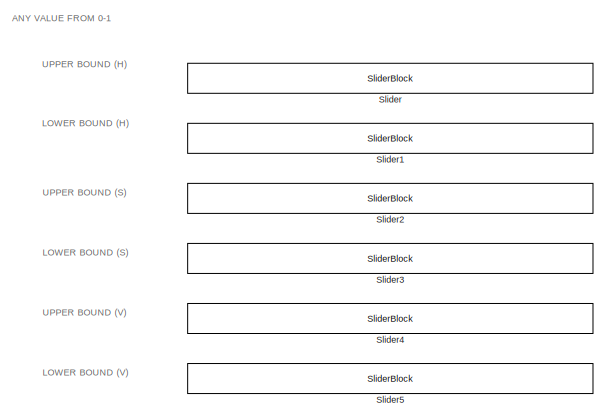
[diagram: root canvas - part 1/2, left side, full height]
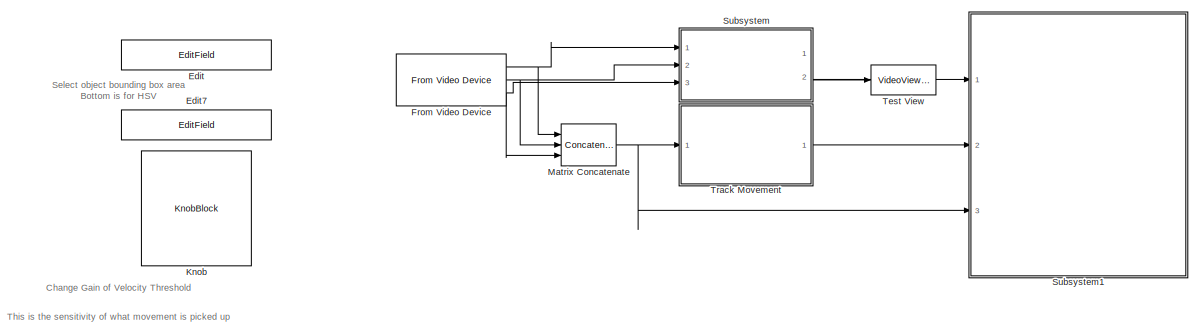
[diagram: root canvas - part 2/2, right side, full height]
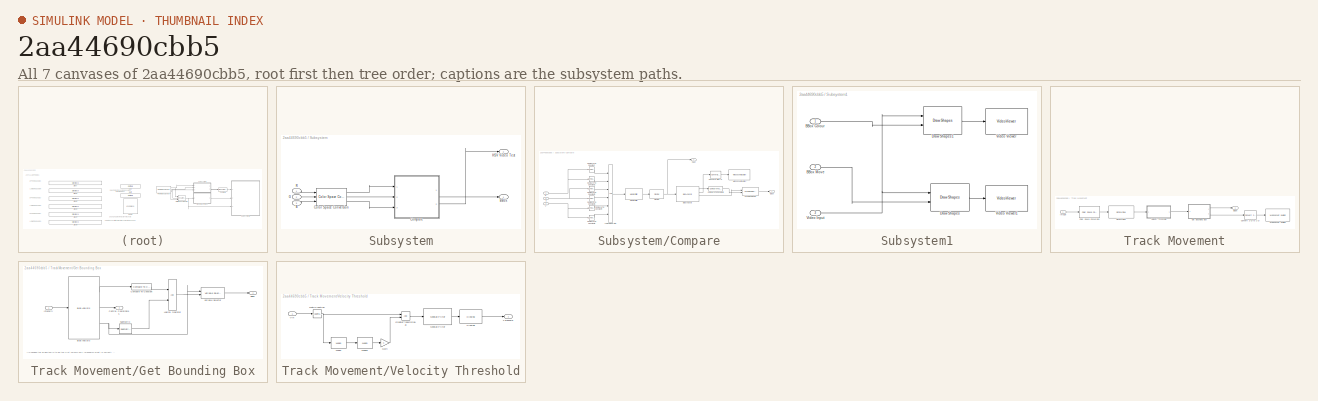
[diagram: thumbnail index - all 7 canvases of the model, root first then tree order]
MODEL slx_2aa44690cbb5
KIND model
CONFIG AbsTol = auto
CONFIG EnableMultiTasking = off
CONFIG FixedStep = auto
CONFIG MaxStep = auto
CONFIG MinStep = auto
CONFIG RelTol = 1e-3
CONFIG SampleTimeConstraint = Unconstrained
CONFIG Solver = VariableStepAuto
CONFIG SolverName = VariableStepAuto
CONFIG StartTime = 0.0
CONFIG StopTime = inf
BLOCK [EditField] Edit
  Alignment = Center
  LabelPosition = Hide
  ShowInitialText = on
BLOCK [EditField] Edit7
  Alignment = Center
  LabelPosition = Hide
  ShowInitialText = on
BLOCK [Reference] From Video Device  REF=imaqlib/From Video Device
  Ports = [0, 3]
  SourceBlock = imaqlib/From Video Device
  SourceProductBaseCode = IA
  SourceProductName = Image Acquisition Toolbox
  SourceType = From Video Device
  UserDataPersistent = on
BLOCK [KnobBlock] Knob
BLOCK [Concatenate] Matrix Concatenate
  ConcatenateDimension = 3
  Mode = Multidimensional array
  NumInputs = 3
  Ports = [3, 1]
BLOCK [SliderBlock] Slider
  ScaleMax = 1
BLOCK [SliderBlock] Slider1
  ScaleMax = 1
BLOCK [SliderBlock] Slider2
  ScaleMax = 1
BLOCK [SliderBlock] Slider3
  ScaleMax = 1
BLOCK [SliderBlock] Slider4
  ScaleMax = 1
BLOCK [SliderBlock] Slider5
  ScaleMax = 1
BLOCK [SubSystem] Subsystem
  Ports = [3, 2]
  RequestExecContextInheritance = off
BLOCK [Inport] Subsystem/B
  IconDisplay = Port number
  Port = 3
BLOCK [Outport] Subsystem/BBox
  IconDisplay = Port number
BLOCK [Reference] Subsystem/Color Space Conversion  REF=visionconversions/Color Space
 Conversion
  Ports = [3, 3]
  SourceBlock = visionconversions/Color Space\n Conversion
  SourceProductBaseCode = VP
  SourceProductName = Computer Vision Toolbox
  SourceType = Color Space Conversion
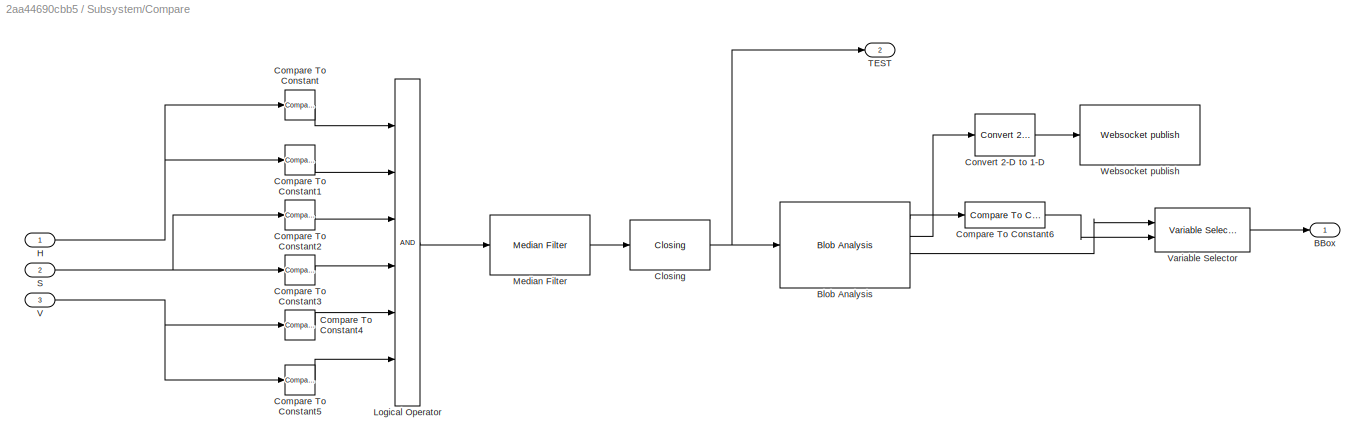
BLOCK [SubSystem] Subsystem/Compare
  Ports = [3, 2]
  RequestExecContextInheritance = off
BLOCK [Outport] Subsystem/Compare/BBox
  IconDisplay = Port number
BLOCK [Reference] Subsystem/Compare/Blob Analysis  REF=visionstatistics/Blob Analysis
  Ports = [1, 4]
  SourceBlock = visionstatistics/Blob Analysis
  SourceProductBaseCode = VP
  SourceProductName = Computer Vision Toolbox
  SourceType = Blob Analysis
  Tag = vipblks_row_conv
BLOCK [Reference] Subsystem/Compare/Closing  REF=visionmorphops/Closing
  Ports = [1, 1]
  SourceBlock = visionmorphops/Closing
  SourceProductBaseCode = VP
  SourceProductName = Computer Vision Toolbox
  SourceType = Closing
BLOCK [Reference] Subsystem/Compare/Compare To Constant  REF=simulink/Logic and Bit
Operations/Compare
To Constant
  Ports = [1, 1]
  SourceBlock = simulink/Logic and Bit\nOperations/Compare\nTo Constant
  SourceProductBaseCode = SL
  SourceProductName = Simulink
  SourceType = Compare To Constant
BLOCK [Reference] Subsystem/Compare/Compare To Constant1  REF=simulink/Logic and Bit
Operations/Compare
To Constant
  Ports = [1, 1]
  SourceBlock = simulink/Logic and Bit\nOperations/Compare\nTo Constant
  SourceProductBaseCode = SL
  SourceProductName = Simulink
  SourceType = Compare To Constant
BLOCK [Reference] Subsystem/Compare/Compare To Constant2  REF=simulink/Logic and Bit
Operations/Compare
To Constant
  Ports = [1, 1]
  SourceBlock = simulink/Logic and Bit\nOperations/Compare\nTo Constant
  SourceProductBaseCode = SL
  SourceProductName = Simulink
  SourceType = Compare To Constant
BLOCK [Reference] Subsystem/Compare/Compare To Constant3  REF=simulink/Logic and Bit
Operations/Compare
To Constant
  Ports = [1, 1]
  SourceBlock = simulink/Logic and Bit\nOperations/Compare\nTo Constant
  SourceProductBaseCode = SL
  SourceProductName = Simulink
  SourceType = Compare To Constant
BLOCK [Reference] Subsystem/Compare/Compare To Constant4  REF=simulink/Logic and Bit
Operations/Compare
To Constant
  Ports = [1, 1]
  SourceBlock = simulink/Logic and Bit\nOperations/Compare\nTo Constant
  SourceProductBaseCode = SL
  SourceProductName = Simulink
  SourceType = Compare To Constant
BLOCK [Reference] Subsystem/Compare/Compare To Constant5  REF=simulink/Logic and Bit
Operations/Compare
To Constant
  Ports = [1, 1]
  SourceBlock = simulink/Logic and Bit\nOperations/Compare\nTo Constant
  SourceProductBaseCode = SL
  SourceProductName = Simulink
  SourceType = Compare To Constant
BLOCK [Reference] Subsystem/Compare/Compare To Constant6  REF=simulink/Logic and Bit
Operations/Compare
To Constant
  Ports = [1, 1]
  SourceBlock = simulink/Logic and Bit\nOperations/Compare\nTo Constant
  SourceProductBaseCode = SL
  SourceProductName = Simulink
  SourceType = Compare To Constant
BLOCK [Reference] Subsystem/Compare/Convert 2-D to 1-D  REF=dspsigattribs/Convert 2-D to 1-D
  Ports = [1, 1]
  SourceBlock = dspsigattribs/Convert 2-D to 1-D
  SourceProductBaseCode = DS
  SourceProductName = DSP System Toolbox
  SourceType = Convert 2-D to 1-D
BLOCK [Inport] Subsystem/Compare/H
  IconDisplay = Port number
BLOCK [Logic] Subsystem/Compare/Logical Operator
  AllPortsSameDT = off
  Inputs = 6
  OutDataTypeStr = boolean
  Ports = [6, 1]
BLOCK [Reference] Subsystem/Compare/Median Filter  REF=visionanalysis/Median Filter
  Ports = [1, 1]
  SourceBlock = visionanalysis/Median Filter
  SourceProductBaseCode = VP
  SourceProductName = Computer Vision Toolbox
  SourceType = Median Filter
BLOCK [Inport] Subsystem/Compare/S
  IconDisplay = Port number
  Port = 2
BLOCK [Outport] Subsystem/Compare/TEST
  IconDisplay = Port number
  Port = 2
BLOCK [Inport] Subsystem/Compare/V
  IconDisplay = Port number
  Port = 3
BLOCK [Reference] Subsystem/Compare/Variable Selector  REF=dspindex/Variable
Selector
  Ports = [2, 1]
  SourceBlock = dspindex/Variable\nSelector
  SourceProductBaseCode = DS
  SourceProductName = DSP System Toolbox
  SourceType = Variable Selector
BLOCK [Reference] Subsystem/Compare/Websocket publish  REF=raspberrypilib/Websocket publish
  Ports = [1]
  SourceBlock = raspberrypilib/Websocket publish
  SourceProductBaseCode = RASPPI
  SourceProductName = Simulink Support Package for Raspberry Pi Hardware
  SourceType = codertarget.raspi.internal.webPublish
BLOCK [Inport] Subsystem/G
  IconDisplay = Port number
  Port = 2
BLOCK [Outport] Subsystem/HSV Video Test
  IconDisplay = Port number
  Port = 2
BLOCK [Inport] Subsystem/R
  IconDisplay = Port number
BLOCK [SubSystem] Subsystem1
  Ports = [3]
  RequestExecContextInheritance = off
BLOCK [Inport] Subsystem1/BBox Colour
  IconDisplay = Port number
BLOCK [Inport] Subsystem1/BBox Move
  IconDisplay = Port number
  Port = 2
BLOCK [Reference] Subsystem1/Draw Shapes  REF=visiontextngfix/Draw Shapes
  Ports = [2, 1]
  SourceBlock = visiontextngfix/Draw Shapes
  SourceProductBaseCode = VP
  SourceProductName = Computer Vision Toolbox
  SourceType = Draw Shapes
BLOCK [Reference] Subsystem1/Draw Shapes1  REF=visiontextngfix/Draw Shapes
  Ports = [2, 1]
  SourceBlock = visiontextngfix/Draw Shapes
  SourceProductBaseCode = VP
  SourceProductName = Computer Vision Toolbox
  SourceType = Draw Shapes
BLOCK [Inport] Subsystem1/Video Input
  IconDisplay = Port number
  Port = 3
BLOCK [VideoViewer] Subsystem1/Video Viewer
  FigPos = [962 1037 958 929]
  Ports = [1]
  ScopeSpecificationString = vipscopes.VideoViewerScopeCfg('CurrentConfiguration', extmgr.ConfigurationSet(extmgr.Configuration('Core','General UI',true),extmgr.Configuration('Core','Source UI',true),extmgr.Configuration('Sources','WiredSimulink',true),extmgr.Configuration('Visuals','Video',true),extmgr.Configuration('Tools','Image Navigation Tools',true),extmgr.Configuration('Tools','Image Tool',true),extmgr.Configuration('T...<+74ch>
BLOCK [VideoViewer] Subsystem1/Video Viewer1
  FigPos = [2 517 958 409]
  Ports = [1]
  ScopeSpecificationString = vipscopes.VideoViewerScopeCfg('CurrentConfiguration', extmgr.ConfigurationSet(extmgr.Configuration('Core','General UI',true),extmgr.Configuration('Core','Source UI',true),extmgr.Configuration('Sources','WiredSimulink',true),extmgr.Configuration('Visuals','Video',true),extmgr.Configuration('Tools','Image Navigation Tools',true),extmgr.Configuration('Tools','Image Tool',true),extmgr.Configuration('T...<+73ch>
BLOCK [VideoViewer] Test View
  FigPos = [962 1037 958 929]
  Ports = [1]
  ScopeSpecificationString = vipscopes.VideoViewerScopeCfg('CurrentConfiguration', extmgr.ConfigurationSet(extmgr.Configuration('Core','General UI',true),extmgr.Configuration('Core','Source UI',true),extmgr.Configuration('Sources','WiredSimulink',true),extmgr.Configuration('Visuals','Video',true),extmgr.Configuration('Tools','Image Navigation Tools',true),extmgr.Configuration('Tools','Image Tool',true),extmgr.Configuration('T...<+74ch>
BLOCK [SubSystem] Track Movement
  Commented = on
  Ports = [1, 1]
  RequestExecContextInheritance = off
BLOCK [Outport] Track Movement/BBox
  IconDisplay = Port number
BLOCK [Reference] Track Movement/Color Space Conversion  REF=visionconversions/Color Space
 Conversion
  Ports = [1, 1]
  SourceBlock = visionconversions/Color Space\n Conversion
  SourceProductBaseCode = VP
  SourceProductName = Computer Vision Toolbox
  SourceType = Color Space Conversion
BLOCK [Reference] Track Movement/Convert 2-D to 1-D  REF=dspsigattribs/Convert 2-D to 1-D
  Ports = [1, 1]
  SourceBlock = dspsigattribs/Convert 2-D to 1-D
  SourceProductBaseCode = DS
  SourceProductName = DSP System Toolbox
  SourceType = Convert 2-D to 1-D
BLOCK [SubSystem] Track Movement/Get Bounding Box
  Ports = [1, 2]
  RequestExecContextInheritance = off
BLOCK [Outport] Track Movement/Get Bounding Box/BBox
  IconDisplay = Port number
BLOCK [Reference] Track Movement/Get Bounding Box/Blob Analysis  REF=visionstatistics/Blob Analysis
  Ports = [1, 3]
  SourceBlock = visionstatistics/Blob Analysis
  SourceProductBaseCode = VP
  SourceProductName = Computer Vision Toolbox
  SourceType = Blob Analysis
  Tag = vipblks_row_conv
BLOCK [Outport] Track Movement/Get Bounding Box/Central Coordinates
  IconDisplay = Port number
  Port = 2
BLOCK [Reference] Track Movement/Get Bounding Box/Compare To Constant  REF=simulink/Logic and Bit
Operations/Compare
To Constant
  Ports = [1, 1]
  SourceBlock = simulink/Logic and Bit\nOperations/Compare\nTo Constant
  SourceProductBaseCode = SL
  SourceProductName = Simulink
  SourceType = Compare To Constant
BLOCK [Inport] Track Movement/Get Bounding Box/Intensity
  IconDisplay = Port number
BLOCK [Logic] Track Movement/Get Bounding Box/Logical Operator
  AllPortsSameDT = off
  OutDataTypeStr = boolean
  Ports = [2, 1]
BLOCK [Reference] Track Movement/Get Bounding Box/Submatrix  REF=dspmtrx3/Submatrix
  Ports = [1, 1]
  SourceBlock = dspmtrx3/Submatrix
  SourceProductBaseCode = DS
  SourceProductName = DSP System Toolbox
  SourceType = Submatrix
BLOCK [Reference] Track Movement/Get Bounding Box/Variable Selector  REF=dspindex/Variable
Selector
  Ports = [2, 1]
  SourceBlock = dspindex/Variable\nSelector
  SourceProductBaseCode = DS
  SourceProductName = DSP System Toolbox
  SourceType = Variable Selector
BLOCK [Inport] Track Movement/Image
  IconDisplay = Port number
BLOCK [Reference] Track Movement/Optical Flow  REF=visionanalysis/Optical Flow
  Ports = [1, 1]
  SourceBlock = visionanalysis/Optical Flow
  SourceProductBaseCode = VP
  SourceProductName = Computer Vision Toolbox
  SourceType = Optical Flow
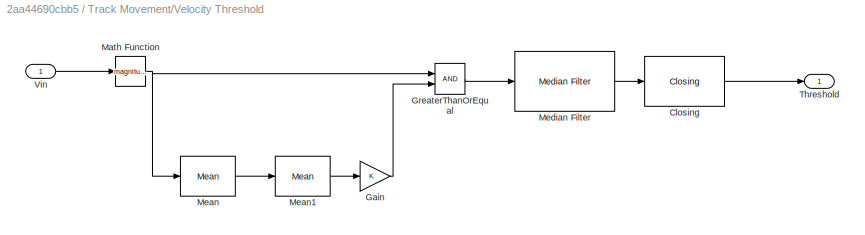
BLOCK [SubSystem] Track Movement/Velocity Threshold
  Ports = [1, 1]
  RequestExecContextInheritance = off
BLOCK [Reference] Track Movement/Velocity Threshold/Closing  REF=visionmorphops/Closing
  Ports = [1, 1]
  SourceBlock = visionmorphops/Closing
  SourceProductBaseCode = VP
  SourceProductName = Computer Vision Toolbox
  SourceType = Closing
BLOCK [Gain] Track Movement/Velocity Threshold/Gain
  OutDataTypeStr = Inherit: Inherit via internal rule
  ParamDataTypeStr = Inherit: Inherit via internal rule
  SaturateOnIntegerOverflow = off
BLOCK [RelationalOperator] Track Movement/Velocity Threshold/GreaterThanOrEqual
  InputSameDT = off
  OutDataTypeStr = boolean
  Ports = [2, 1]
  RndMeth = Simplest
BLOCK [Math] Track Movement/Velocity Threshold/Math Function
  Operator = magnitude^2
  Ports = [1, 1]
  SignedPower = off
BLOCK [Reference] Track Movement/Velocity Threshold/Mean  REF=dspstat3/Mean
  Ports = [1, 1]
  SourceBlock = dspstat3/Mean
  SourceProductBaseCode = DS
  SourceProductName = DSP System Toolbox
  SourceType = Mean
  UserDataPersistent = on
BLOCK [Reference] Track Movement/Velocity Threshold/Mean1  REF=dspstat3/Mean
  Ports = [1, 1]
  SourceBlock = dspstat3/Mean
  SourceProductBaseCode = DS
  SourceProductName = DSP System Toolbox
  SourceType = Mean
  UserDataPersistent = on
BLOCK [Reference] Track Movement/Velocity Threshold/Median Filter  REF=visionanalysis/Median Filter
  Ports = [1, 1]
  SourceBlock = visionanalysis/Median Filter
  SourceProductBaseCode = VP
  SourceProductName = Computer Vision Toolbox
  SourceType = Median Filter
BLOCK [Outport] Track Movement/Velocity Threshold/Threshold
  IconDisplay = Port number
BLOCK [Inport] Track Movement/Velocity Threshold/Vin
  IconDisplay = Port number
BLOCK [Reference] Track Movement/Websocket publish  REF=raspberrypilib/Websocket publish
  Ports = [1]
  SourceBlock = raspberrypilib/Websocket publish
  SourceProductBaseCode = RASPPI
  SourceProductName = Simulink Support Package for Raspberry Pi Hardware
  SourceType = codertarget.raspi.internal.webPublish
ANNOTATION (root): ANY VALUE FROM 0-1
ANNOTATION (root): Change Gain of Velocity Threshold
ANNOTATION (root): LOWER BOUND (H)
ANNOTATION (root): LOWER BOUND (S)
ANNOTATION (root): LOWER BOUND (V)
ANNOTATION (root): Select object bounding box area Bottom is for HSV
ANNOTATION (root): UPPER BOUND (S)
ANNOTATION (root): UPPER BOUND (V)
ANNOTATION (root): UPPER BOUND (H)
ANNOTATION (root): This is the sensitivity of what movement is picked up
ANNOTATION Track Movement/Get Bounding Box: //Changed the SUBMATRIX to be the first column only (Research what is correct) ---> Default is all columns (50x4)//
NET From Video Device:1 -> Matrix Concatenate:1, Subsystem:1
NET From Video Device:2 -> Matrix Concatenate:2, Subsystem:2
NET From Video Device:3 -> Matrix Concatenate:3, Subsystem:3
NET Matrix Concatenate:1 -> Subsystem1:3, Track Movement:1
LINE Subsystem/B:1 -> Subsystem/Color Space Conversion:3
LINE Subsystem/Color Space Conversion:1 -> Subsystem/Compare:1
LINE Subsystem/Color Space Conversion:2 -> Subsystem/Compare:2
LINE Subsystem/Color Space Conversion:3 -> Subsystem/Compare:3
LINE Subsystem/Compare/Blob Analysis:1 -> Subsystem/Compare/Compare To Constant6:1
LINE Subsystem/Compare/Blob Analysis:2 -> Subsystem/Compare/Convert 2-D to 1-D:1
LINE Subsystem/Compare/Blob Analysis:3 -> Subsystem/Compare/Variable Selector:1
NET Subsystem/Compare/Closing:1 -> Subsystem/Compare/Blob Analysis:1, Subsystem/Compare/TEST:1
LINE Subsystem/Compare/Compare To Constant1:1 -> Subsystem/Compare/Logical Operator:2
LINE Subsystem/Compare/Compare To Constant2:1 -> Subsystem/Compare/Logical Operator:3
LINE Subsystem/Compare/Compare To Constant3:1 -> Subsystem/Compare/Logical Operator:4
LINE Subsystem/Compare/Compare To Constant4:1 -> Subsystem/Compare/Logical Operator:5
LINE Subsystem/Compare/Compare To Constant5:1 -> Subsystem/Compare/Logical Operator:6
LINE Subsystem/Compare/Compare To Constant6:1 -> Subsystem/Compare/Variable Selector:2
LINE Subsystem/Compare/Compare To Constant:1 -> Subsystem/Compare/Logical Operator:1
LINE Subsystem/Compare/Convert 2-D to 1-D:1 -> Subsystem/Compare/Websocket publish:1
NET Subsystem/Compare/H:1 -> Subsystem/Compare/Compare To Constant1:1, Subsystem/Compare/Compare To Constant:1
LINE Subsystem/Compare/Logical Operator:1 -> Subsystem/Compare/Median Filter:1
LINE Subsystem/Compare/Median Filter:1 -> Subsystem/Compare/Closing:1
NET Subsystem/Compare/S:1 -> Subsystem/Compare/Compare To Constant2:1, Subsystem/Compare/Compare To Constant3:1
NET Subsystem/Compare/V:1 -> Subsystem/Compare/Compare To Constant4:1, Subsystem/Compare/Compare To Constant5:1
LINE Subsystem/Compare/Variable Selector:1 -> Subsystem/Compare/BBox:1
LINE Subsystem/Compare:1 -> Subsystem/BBox:1
LINE Subsystem/Compare:2 -> Subsystem/HSV Video Test:1
LINE Subsystem/G:1 -> Subsystem/Color Space Conversion:2
LINE Subsystem/R:1 -> Subsystem/Color Space Conversion:1
LINE Subsystem1/BBox Colour:1 -> Subsystem1/Draw Shapes1:2
LINE Subsystem1/BBox Move:1 -> Subsystem1/Draw Shapes:2
LINE Subsystem1/Draw Shapes1:1 -> Subsystem1/Video Viewer:1
LINE Subsystem1/Draw Shapes:1 -> Subsystem1/Video Viewer1:1
NET Subsystem1/Video Input:1 -> Subsystem1/Draw Shapes1:1, Subsystem1/Draw Shapes:1
LINE Subsystem:1 -> Subsystem1:1
LINE Subsystem:2 -> Test View:1
LINE Track Movement/Color Space Conversion:1 -> Track Movement/Optical Flow:1
LINE Track Movement/Convert 2-D to 1-D:1 -> Track Movement/Websocket publish:1
LINE Track Movement/Get Bounding Box/Blob Analysis:1 -> Track Movement/Get Bounding Box/Compare To Constant:1
LINE Track Movement/Get Bounding Box/Blob Analysis:2 -> Track Movement/Get Bounding Box/Central Coordinates:1
NET Track Movement/Get Bounding Box/Blob Analysis:3 -> Track Movement/Get Bounding Box/Submatrix:1, Track Movement/Get Bounding Box/Variable Selector:1
LINE Track Movement/Get Bounding Box/Compare To Constant:1 -> Track Movement/Get Bounding Box/Logical Operator:1
LINE Track Movement/Get Bounding Box/Intensity:1 -> Track Movement/Get Bounding Box/Blob Analysis:1
LINE Track Movement/Get Bounding Box/Logical Operator:1 -> Track Movement/Get Bounding Box/Variable Selector:2
LINE Track Movement/Get Bounding Box/Submatrix:1 -> Track Movement/Get Bounding Box/Logical Operator:2
LINE Track Movement/Get Bounding Box/Variable Selector:1 -> Track Movement/Get Bounding Box/BBox:1
LINE Track Movement/Get Bounding Box:1 -> Track Movement/BBox:1
LINE Track Movement/Get Bounding Box:2 -> Track Movement/Convert 2-D to 1-D:1
LINE Track Movement/Image:1 -> Track Movement/Color Space Conversion:1
LINE Track Movement/Optical Flow:1 -> Track Movement/Velocity Threshold:1
LINE Track Movement/Velocity Threshold/Closing:1 -> Track Movement/Velocity Threshold/Threshold:1
LINE Track Movement/Velocity Threshold/Gain:1 -> Track Movement/Velocity Threshold/GreaterThanOrEqual:2
LINE Track Movement/Velocity Threshold/GreaterThanOrEqual:1 -> Track Movement/Velocity Threshold/Median Filter:1
NET Track Movement/Velocity Threshold/Math Function:1 -> Track Movement/Velocity Threshold/GreaterThanOrEqual:1, Track Movement/Velocity Threshold/Mean:1
LINE Track Movement/Velocity Threshold/Mean1:1 -> Track Movement/Velocity Threshold/Gain:1
LINE Track Movement/Velocity Threshold/Mean:1 -> Track Movement/Velocity Threshold/Mean1:1
LINE Track Movement/Velocity Threshold/Median Filter:1 -> Track Movement/Velocity Threshold/Closing:1
LINE Track Movement/Velocity Threshold/Vin:1 -> Track Movement/Velocity Threshold/Math Function:1
LINE Track Movement/Velocity Threshold:1 -> Track Movement/Get Bounding Box:1
LINE Track Movement:1 -> Subsystem1:2
note: NET lines group one-source signal fan-out (src -> all destinations, sorted); 1:1 wires keep LINE
